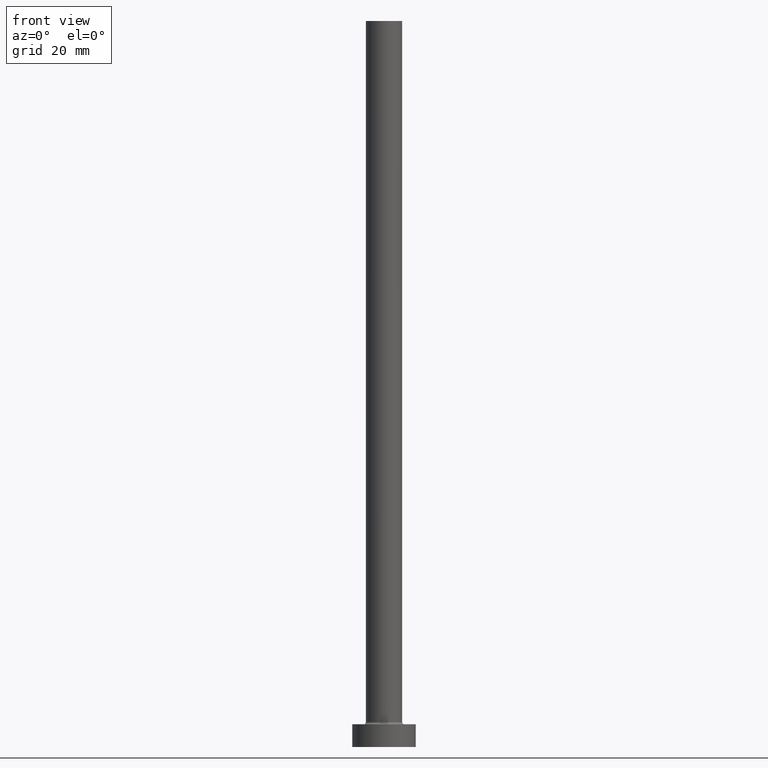
[diagram: clean part render]
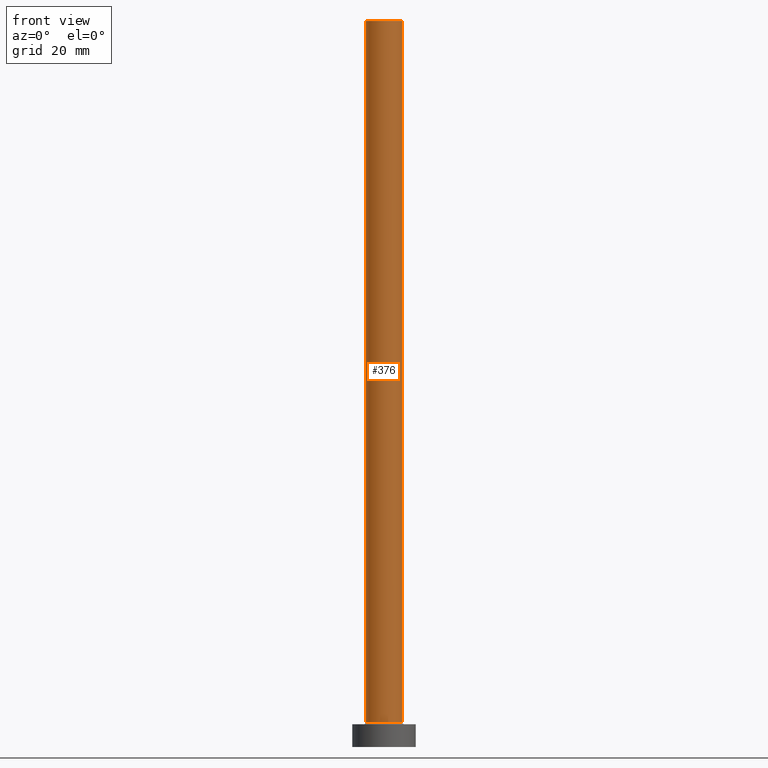
[diagram: same view with one face highlighted and labeled with its STEP entity id]
A machine part, front view. The second image highlights one B-rep face of the part: STEP entity #376.
In plain terms, the highlighted cylindrical surface (edge-blend (fillet) strip) has radius 4 mm, axis along (-0, -0, -1).
Its self-contained STEP definition (entity closure, byte-faithful):
#6 = CARTESIAN_POINT ( 'NONE',  ( 4.000000000000000000, 4.898587196589412829E-16, 160.0000000000000000 ) ) ;
#25 = LINE ( 'NONE', #60, #409 ) ;
#32 = CYLINDRICAL_SURFACE ( 'NONE', #417, 4.000000000000000000 ) ;
#60 = CARTESIAN_POINT ( 'NONE',  ( -4.000000000000000000, 0.000000000000000000, 160.0000000000000000 ) ) ;
#66 = FACE_OUTER_BOUND ( 'NONE', #442, .T. ) ;
#75 = AXIS2_PLACEMENT_3D ( 'NONE', #155, #120, #364 ) ;
#77 = ORIENTED_EDGE ( 'NONE', *, *, #354, .F. ) ;
#85 = CIRCLE ( 'NONE', #75, 4.000000000000000000 ) ;
#96 = EDGE_CURVE ( 'NONE', #456, #253, #25, .T. ) ;
#113 = ORIENTED_EDGE ( 'NONE', *, *, #431, .T. ) ;
#115 = EDGE_CURVE ( 'NONE', #325, #218, #269, .T. ) ;
#120 = DIRECTION ( 'NONE',  ( 0.000000000000000000, 0.000000000000000000, 1.000000000000000000 ) ) ;
#127 = DIRECTION ( 'NONE',  ( -0.000000000000000000, -0.000000000000000000, -1.000000000000000000 ) ) ;
#143 = DIRECTION ( 'NONE',  ( -0.000000000000000000, -0.000000000000000000, -1.000000000000000000 ) ) ;
#146 = DIRECTION ( 'NONE',  ( 1.000000000000000000, 0.000000000000000000, 0.000000000000000000 ) ) ;
#155 = CARTESIAN_POINT ( 'NONE',  ( 0.000000000000000000, 0.000000000000000000, 5.500000000000005329 ) ) ;
#161 = CARTESIAN_POINT ( 'NONE',  ( -4.000000000000000000, 0.000000000000000000, 160.0000000000000000 ) ) ;
#175 = AXIS2_PLACEMENT_3D ( 'NONE', #257, #284, #146 ) ;
#205 = CARTESIAN_POINT ( 'NONE',  ( 4.000000000000000000, 4.898587196589412829E-16, 160.0000000000000000 ) ) ;
#218 = VERTEX_POINT ( 'NONE', #219 ) ;
#219 = CARTESIAN_POINT ( 'NONE',  ( 4.000000000000000000, 4.898587196589412829E-16, 5.500000000000005329 ) ) ;
#247 = DIRECTION ( 'NONE',  ( -1.000000000000000000, 0.000000000000000000, 0.000000000000000000 ) ) ;
#253 = VERTEX_POINT ( 'NONE', #423 ) ;
#257 = CARTESIAN_POINT ( 'NONE',  ( 0.000000000000000000, 0.000000000000000000, 160.0000000000000000 ) ) ;
#269 = LINE ( 'NONE', #205, #390 ) ;
#284 = DIRECTION ( 'NONE',  ( 0.000000000000000000, 0.000000000000000000, 1.000000000000000000 ) ) ;
#292 = CARTESIAN_POINT ( 'NONE',  ( 0.000000000000000000, 0.000000000000000000, 160.0000000000000000 ) ) ;
#294 = CIRCLE ( 'NONE', #175, 4.000000000000000000 ) ;
#310 = ORIENTED_EDGE ( 'NONE', *, *, #115, .F. ) ;
#325 = VERTEX_POINT ( 'NONE', #6 ) ;
#334 = ORIENTED_EDGE ( 'NONE', *, *, #96, .T. ) ;
#337 = DIRECTION ( 'NONE',  ( -0.000000000000000000, -0.000000000000000000, -1.000000000000000000 ) ) ;
#354 = EDGE_CURVE ( 'NONE', #456, #325, #294, .T. ) ;
#364 = DIRECTION ( 'NONE',  ( 1.000000000000000000, 0.000000000000000000, 0.000000000000000000 ) ) ;
#376 = ADVANCED_FACE ( 'NONE', ( #66 ), #32, .T. ) ;
#390 = VECTOR ( 'NONE', #127, 1000.000000000000000 ) ;
#409 = VECTOR ( 'NONE', #337, 1000.000000000000000 ) ;
#417 = AXIS2_PLACEMENT_3D ( 'NONE', #292, #143, #247 ) ;
#423 = CARTESIAN_POINT ( 'NONE',  ( -4.000000000000000000, 0.000000000000000000, 5.500000000000005329 ) ) ;
#431 = EDGE_CURVE ( 'NONE', #253, #218, #85, .T. ) ;
#442 = EDGE_LOOP ( 'NONE', ( #310, #77, #334, #113 ) ) ;
#456 = VERTEX_POINT ( 'NONE', #161 ) ;